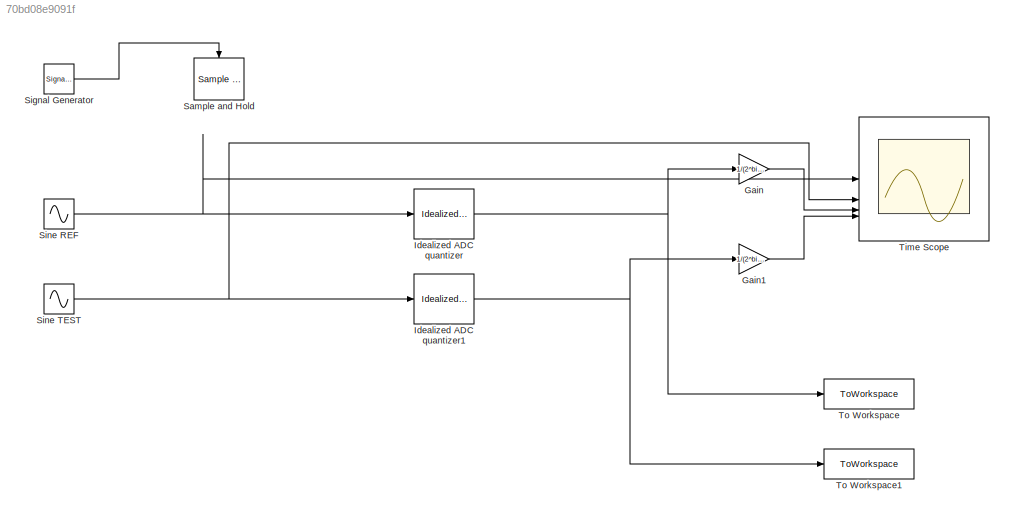
MODEL slx_70bd08e9091f
KIND model
CONFIG AbsTol = auto
CONFIG EnableMultiTasking = off
CONFIG FixedStep = auto
CONFIG MaxStep = auto
CONFIG MinStep = auto
CONFIG RelTol = 1e-3
CONFIG SampleTimeConstraint = Unconstrained
CONFIG SolverName = VariableStepAuto
CONFIG StartTime = 0.0
CONFIG StopTime = min_sample_time
BLOCK [Gain] Gain
  Gain = 1/(2^bit_samp)
BLOCK [Gain] Gain1
  Gain = 1/(2^bit_samp)
BLOCK [Reference] Idealized ADC quantizer  REF=simulink_extras/Additional
Discrete/Idealized ADC quantizer
  AttributesFormatString = (settings: %<NumberOfConverterBits>-bit converter\nVmin: %<Vmin>, Vmax: %<Vmax>)
  SourceBlock = simulink_extras/Additional\nDiscrete/Idealized ADC quantizer
  SourceType = IdealADC
BLOCK [Reference] Idealized ADC quantizer1  REF=simulink_extras/Additional
Discrete/Idealized ADC quantizer
  AttributesFormatString = (settings: %<NumberOfConverterBits>-bit converter\nVmin: %<Vmin>, Vmax: %<Vmax>)
  SourceBlock = simulink_extras/Additional\nDiscrete/Idealized ADC quantizer
  SourceType = IdealADC
BLOCK [Reference] Sample and Hold  REF=dspsigops/Sample
and Hold
  SourceBlock = dspsigops/Sample\nand Hold
  SourceType = Sample and Hold
BLOCK [SignalGenerator] Signal Generator
  Frequency = f_samp
  WaveForm = square
BLOCK [Sin] Sine REF
  Amplitude = 1/2
  Bias = 1/2
  Frequency = 2*pi*f_ref
  SampleTime = 1/f_sim
BLOCK [Sin] Sine TEST
  Amplitude = 1/2*test_gain
  Bias = 1/2
  Frequency = 2*pi*f_ref
  Phase = test_phase
  SampleTime = 1/f_sim
BLOCK [Scope] Time Scope
  DefaultConfigurationName = spbscopes.TimeScopeBlockCfg
  Floating = off
  NumInputPorts = 4
  ScopeSpecificationString = spbscopes.TimeScopeBlockCfg('CurrentConfiguration', extmgr.ConfigurationSet(extmgr.Configuration('Core','General UI',true),extmgr.Configuration('Core','Source UI',true),extmgr.Configuration('Sources','WiredSimulink',true,'SampleTime','1/f_sim'),extmgr.Configuration('Visuals','Time Domain',true,'DisplayPropertyDefaults',struct('MinYLimReal','-0.125','MaxYLimReal','1.12499','YLabelReal','Amplitude',...<+1428ch>
  UserDataPersistent = on
BLOCK [ToWorkspace] To Workspace
  FixptAsFi = on
  MaxDataPoints = inf
  SampleTime = 1/f_samp
  Save2DSignal = 2-D array (concatenate along first dimension)
  VariableName = ref
BLOCK [ToWorkspace] To Workspace1
  FixptAsFi = on
  MaxDataPoints = inf
  SampleTime = 1/f_samp
  Save2DSignal = 2-D array (concatenate along first dimension)
  VariableName = test
LINE Gain1:1 -> Time Scope:4
LINE Gain:1 -> Time Scope:3
NET Idealized ADC quantizer1:1 -> Gain1:1, To Workspace1:1
NET Idealized ADC quantizer:1 -> Gain:1, To Workspace:1
LINE Signal Generator:1 -> Sample and Hold:trigger
NET Sine REF:1 -> Idealized ADC quantizer:1, Time Scope:1
NET Sine TEST:1 -> Idealized ADC quantizer1:1, Time Scope:2
note: NET lines group one-source signal fan-out (src -> all destinations, sorted); 1:1 wires keep LINE
